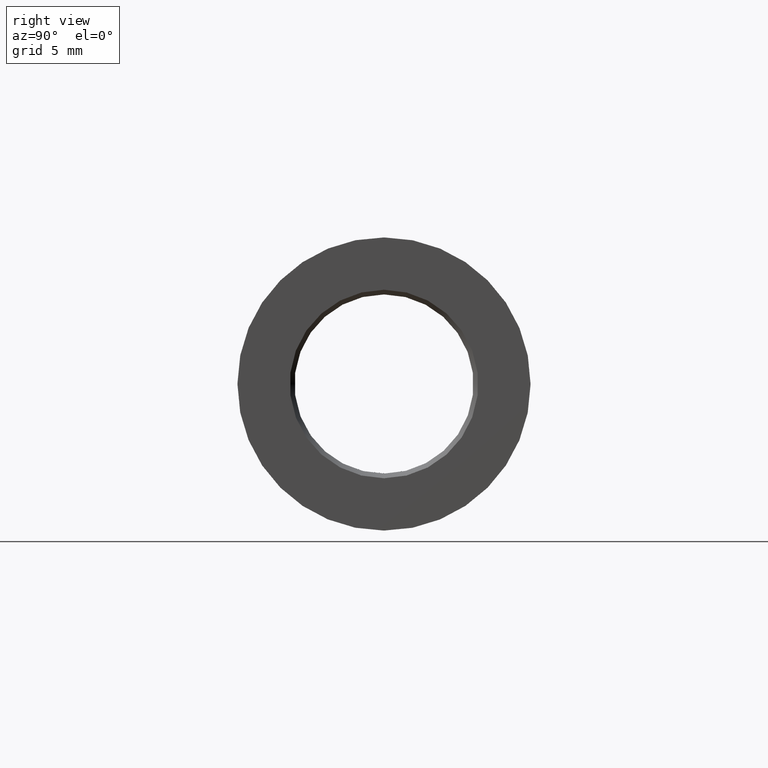
[diagram: clean part render]
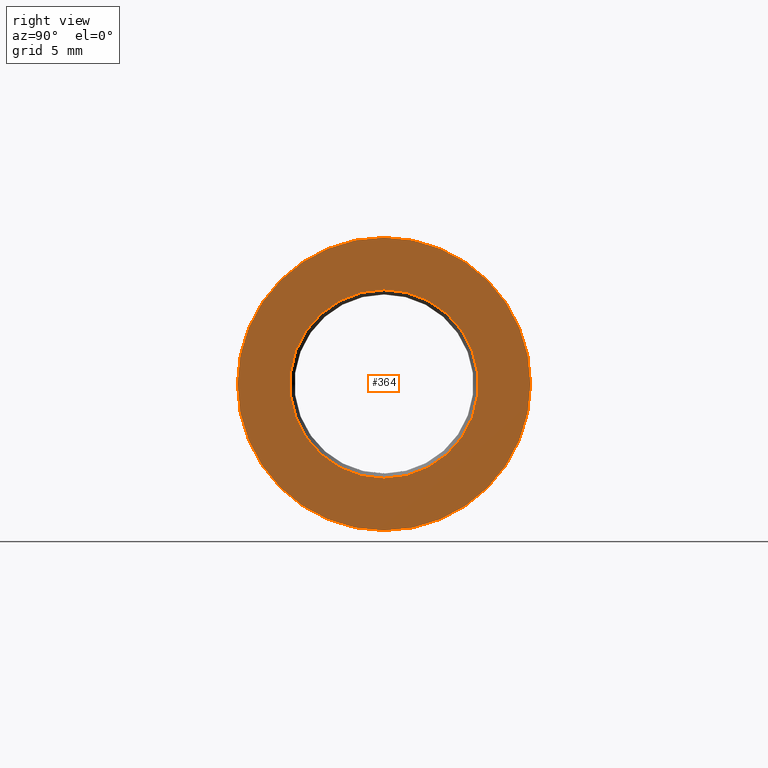
[diagram: same view with one face highlighted and labeled with its STEP entity id]
A machine part, right view. The second image highlights one B-rep face of the part: STEP entity #364.
In plain terms, the highlighted planar face has unit normal (-1, 0, -0).
Its self-contained STEP definition (entity closure, byte-faithful):
#8 = CIRCLE ( 'NONE', #173, 5.788675134594814000 ) ;
#15 = FACE_BOUND ( 'NONE', #287, .T. ) ;
#19 = CARTESIAN_POINT ( 'NONE',  ( 0.0000000000000000000, 0.0000000000000000000, 0.0000000000000000000 ) ) ;
#38 = VERTEX_POINT ( 'NONE', #134 ) ;
#98 = EDGE_CURVE ( 'NONE', #38, #38, #219, .T. ) ;
#114 = FACE_OUTER_BOUND ( 'NONE', #238, .T. ) ;
#134 = CARTESIAN_POINT ( 'NONE',  ( 0.0000000000000000000, 0.0000000000000000000, 9.000000000000000000 ) ) ;
#141 = DIRECTION ( 'NONE',  ( -1.000000000000000000, -0.0000000000000000000, -0.0000000000000000000 ) ) ;
#143 = CARTESIAN_POINT ( 'NONE',  ( 0.0000000000000000000, 0.0000000000000000000, 0.0000000000000000000 ) ) ;
#153 = PLANE ( 'NONE',  #259 ) ;
#173 = AXIS2_PLACEMENT_3D ( 'NONE', #19, #283, #416 ) ;
#196 = AXIS2_PLACEMENT_3D ( 'NONE', #143, #141, #404 ) ;
#214 = DIRECTION ( 'NONE',  ( -1.000000000000000000, 0.0000000000000000000, -0.0000000000000000000 ) ) ;
#219 = CIRCLE ( 'NONE', #196, 9.000000000000000000 ) ;
#238 = EDGE_LOOP ( 'NONE', ( #250 ) ) ;
#250 = ORIENTED_EDGE ( 'NONE', *, *, #98, .F. ) ;
#259 = AXIS2_PLACEMENT_3D ( 'NONE', #351, #214, #318 ) ;
#273 = VERTEX_POINT ( 'NONE', #390 ) ;
#283 = DIRECTION ( 'NONE',  ( -1.000000000000000000, -0.0000000000000000000, -0.0000000000000000000 ) ) ;
#287 = EDGE_LOOP ( 'NONE', ( #328 ) ) ;
#308 = EDGE_CURVE ( 'NONE', #273, #273, #8, .T. ) ;
#318 = DIRECTION ( 'NONE',  ( -0.0000000000000000000, 0.0000000000000000000, 1.000000000000000000 ) ) ;
#328 = ORIENTED_EDGE ( 'NONE', *, *, #308, .T. ) ;
#351 = CARTESIAN_POINT ( 'NONE',  ( 0.0000000000000000000, 5.788675134594814000, 0.0000000000000000000 ) ) ;
#364 = ADVANCED_FACE ( 'NONE', ( #114, #15 ), #153, .F. ) ;
#390 = CARTESIAN_POINT ( 'NONE',  ( 0.0000000000000000000, 0.0000000000000000000, 5.788675134594814000 ) ) ;
#404 = DIRECTION ( 'NONE',  ( 0.0000000000000000000, 0.0000000000000000000, 1.000000000000000000 ) ) ;
#416 = DIRECTION ( 'NONE',  ( 0.0000000000000000000, 0.0000000000000000000, 1.000000000000000000 ) ) ;